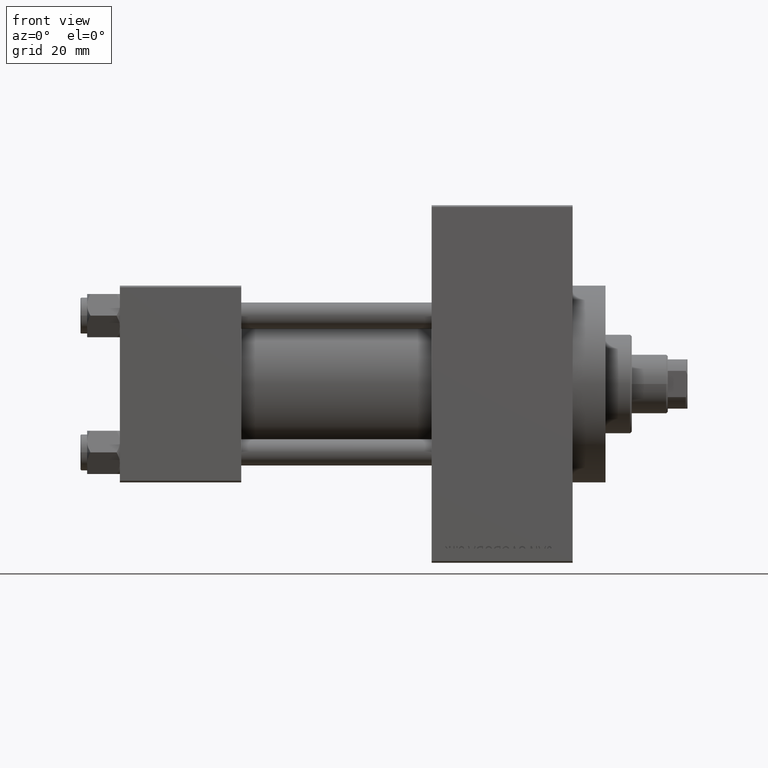
[diagram: clean part render]
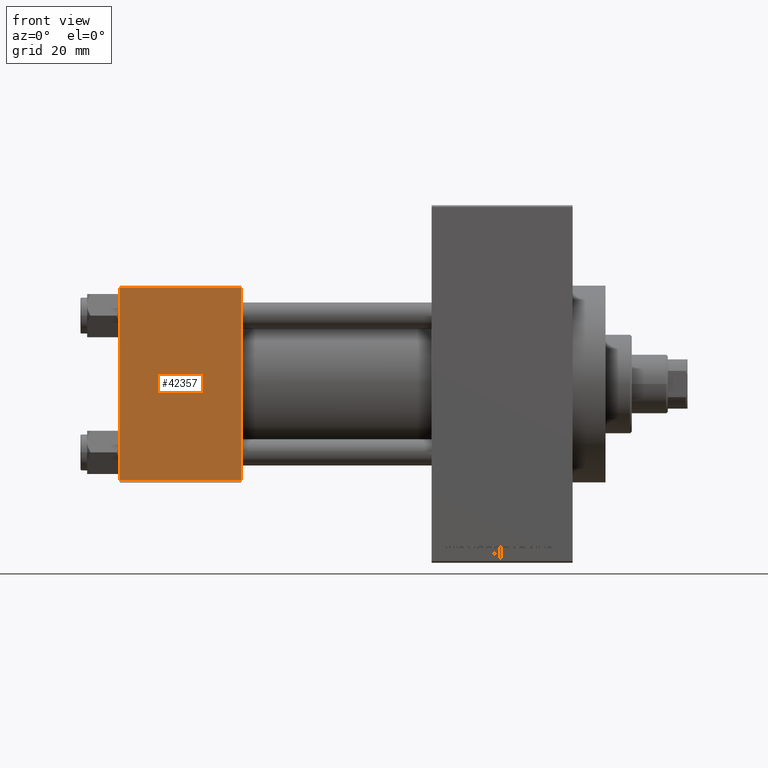
[diagram: same view with one face highlighted and labeled with its STEP entity id]
A machine part, front view. The second image highlights one B-rep face of the part: STEP entity #42357.
In plain terms, the highlighted planar face has unit normal (0, 1, 0).
Its self-contained STEP definition (entity closure, byte-faithful):
#896 = VECTOR ( 'NONE', #18341, 1000.000000000000000 ) ;
#1319 = VECTOR ( 'NONE', #7971, 1000.000000000000000 ) ;
#3960 = CARTESIAN_POINT ( 'NONE',  ( 37.00000000000000000, -30.00000000000000000, 29.99999999999999289 ) ) ;
#4395 = CARTESIAN_POINT ( 'NONE',  ( 37.00000000000000000, -30.00000000000000000, -29.50000000000001776 ) ) ;
#5299 = CARTESIAN_POINT ( 'NONE',  ( 37.00000000000000000, -30.00000000000000000, -29.50000000000001776 ) ) ;
#6023 = CARTESIAN_POINT ( 'NONE',  ( 37.00000000000000000, -30.00000000000000000, 29.49999999999999289 ) ) ;
#6614 = EDGE_CURVE ( 'NONE', #22187, #26237, #40092, .T. ) ;
#7534 = FACE_OUTER_BOUND ( 'NONE', #23123, .T. ) ;
#7971 = DIRECTION ( 'NONE',  ( 1.000000000000000000, 0.000000000000000000, 0.000000000000000000 ) ) ;
#10134 = AXIS2_PLACEMENT_3D ( 'NONE', #3960, #12067, #22826 ) ;
#11596 = EDGE_CURVE ( 'NONE', #22187, #32346, #21170, .T. ) ;
#12067 = DIRECTION ( 'NONE',  ( -0.000000000000000000, 1.000000000000000000, 0.000000000000000000 ) ) ;
#12720 = CARTESIAN_POINT ( 'NONE',  ( 0.000000000000000000, -30.00000000000000000, 29.99999999999999289 ) ) ;
#14205 = CARTESIAN_POINT ( 'NONE',  ( 37.00000000000000000, -30.00000000000000000, 29.99999999999999289 ) ) ;
#14628 = CARTESIAN_POINT ( 'NONE',  ( 0.000000000000000000, -30.00000000000000000, 29.49999999999999289 ) ) ;
#15125 = LINE ( 'NONE', #4395, #1319 ) ;
#15492 = ORIENTED_EDGE ( 'NONE', *, *, #41180, .T. ) ;
#16310 = LINE ( 'NONE', #12720, #36742 ) ;
#17346 = DIRECTION ( 'NONE',  ( 0.000000000000000000, 0.000000000000000000, -1.000000000000000000 ) ) ;
#18341 = DIRECTION ( 'NONE',  ( -1.000000000000000000, 0.000000000000000000, 0.000000000000000000 ) ) ;
#21134 = ORIENTED_EDGE ( 'NONE', *, *, #36109, .T. ) ;
#21170 = LINE ( 'NONE', #14205, #30042 ) ;
#22187 = VERTEX_POINT ( 'NONE', #35462 ) ;
#22826 = DIRECTION ( 'NONE',  ( 0.000000000000000000, -0.000000000000000000, 1.000000000000000000 ) ) ;
#23123 = EDGE_LOOP ( 'NONE', ( #15492, #21134, #32011, #33972 ) ) ;
#26237 = VERTEX_POINT ( 'NONE', #14628 ) ;
#30042 = VECTOR ( 'NONE', #17346, 1000.000000000000000 ) ;
#32011 = ORIENTED_EDGE ( 'NONE', *, *, #11596, .F. ) ;
#32346 = VERTEX_POINT ( 'NONE', #5299 ) ;
#33972 = ORIENTED_EDGE ( 'NONE', *, *, #6614, .T. ) ;
#35462 = CARTESIAN_POINT ( 'NONE',  ( 37.00000000000000000, -30.00000000000000000, 29.49999999999999289 ) ) ;
#36020 = CARTESIAN_POINT ( 'NONE',  ( 0.000000000000000000, -30.00000000000000000, -29.50000000000001776 ) ) ;
#36109 = EDGE_CURVE ( 'NONE', #46637, #32346, #15125, .T. ) ;
#36668 = PLANE ( 'NONE',  #10134 ) ;
#36742 = VECTOR ( 'NONE', #41893, 1000.000000000000000 ) ;
#40092 = LINE ( 'NONE', #6023, #896 ) ;
#41180 = EDGE_CURVE ( 'NONE', #26237, #46637, #16310, .T. ) ;
#41893 = DIRECTION ( 'NONE',  ( 0.000000000000000000, 0.000000000000000000, -1.000000000000000000 ) ) ;
#42357 = ADVANCED_FACE ( 'NONE', ( #7534 ), #36668, .F. ) ;
#46637 = VERTEX_POINT ( 'NONE', #36020 ) ;